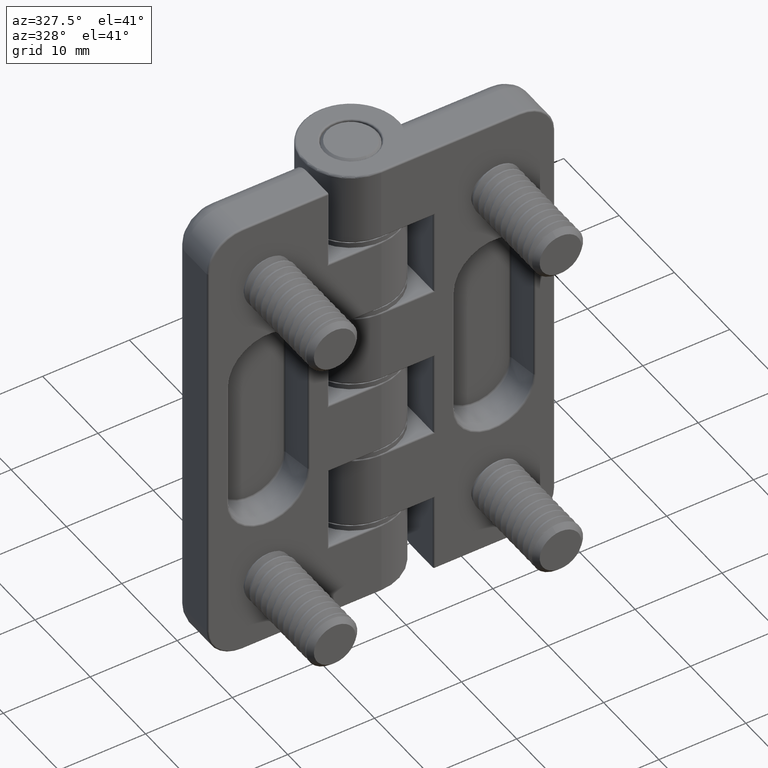
[diagram: clean part render]
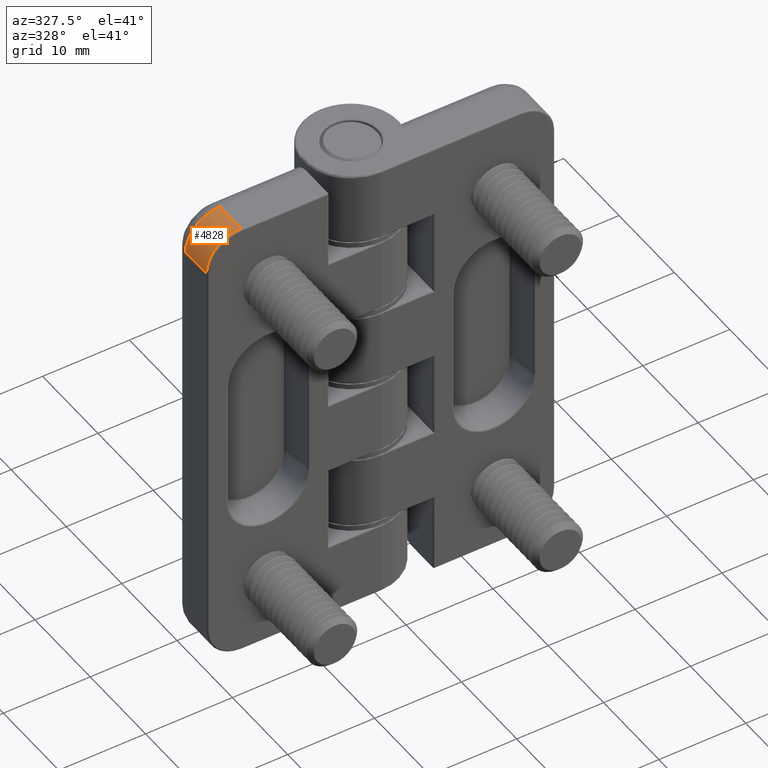
[diagram: same view with one face highlighted and labeled with its STEP entity id]
A machine part, auxiliary view. The second image highlights one B-rep face of the part: STEP entity #4828.
In plain terms, the highlighted cylindrical surface (partial cylindrical patch) has radius 4 mm, axis along (0, 1, 0).
Its self-contained STEP definition (entity closure, byte-faithful):
#314=LINE('',#28351,#522);
#317=LINE('',#28357,#525);
#522=VECTOR('',#6205,3.80000000000001);
#525=VECTOR('',#6210,3.8);
#886=FACE_OUTER_BOUND('',#1193,.T.);
#1193=EDGE_LOOP('',(#4064,#4065,#4066,#4067));
#1482=CIRCLE('',#5241,4.);
#1494=CIRCLE('',#5266,4.);
#2207=VERTEX_POINT('',#28289);
#2208=VERTEX_POINT('',#28293);
#2216=VERTEX_POINT('',#28350);
#2218=VERTEX_POINT('',#28356);
#2847=EDGE_CURVE('',#2207,#2208,#1482,.T.);
#2868=EDGE_CURVE('',#2216,#2208,#314,.T.);
#2871=EDGE_CURVE('',#2207,#2218,#317,.T.);
#2872=EDGE_CURVE('',#2218,#2216,#1494,.F.);
#4064=ORIENTED_EDGE('',*,*,#2847,.F.);
#4065=ORIENTED_EDGE('',*,*,#2871,.T.);
#4066=ORIENTED_EDGE('',*,*,#2872,.T.);
#4067=ORIENTED_EDGE('',*,*,#2868,.T.);
#4644=CYLINDRICAL_SURFACE('',#5265,4.);
#4828=ADVANCED_FACE('',(#886),#4644,.T.);
#5241=AXIS2_PLACEMENT_3D('',#28295,#6151,#6152);
#5265=AXIS2_PLACEMENT_3D('',#28355,#6208,#6209);
#5266=AXIS2_PLACEMENT_3D('',#28358,#6211,#6212);
#6151=DIRECTION('center_axis',(5.55111512312578E-16,-1.,4.21687917729221E-81));
#6152=DIRECTION('ref_axis',(0.707106781186547,3.92523114670943E-16,-0.707106781186548));
#6205=DIRECTION('',(2.96619335758314E-115,-1.,0.));
#6208=DIRECTION('center_axis',(-2.96619335758314E-115,1.,0.));
#6209=DIRECTION('ref_axis',(0.707106781186547,4.96976067915675E-66,-0.707106781186548));
#6210=DIRECTION('',(-2.96619335758314E-115,1.,0.));
#6211=DIRECTION('center_axis',(-6.93889390390723E-17,1.,-2.1084395886461E-81));
#6212=DIRECTION('ref_axis',(0.,0.,-1.));
#28289=CARTESIAN_POINT('',(16.,-5.3,-54.));
#28293=CARTESIAN_POINT('',(20.,-5.30000000000001,-50.));
#28295=CARTESIAN_POINT('Origin',(16.,-5.30000000000001,-50.));
#28350=CARTESIAN_POINT('',(20.,-1.5,-50.));
#28351=CARTESIAN_POINT('',(20.,-3.48262054920434,-50.));
#28355=CARTESIAN_POINT('Origin',(16.,-3.48262054920434,-50.));
#28356=CARTESIAN_POINT('',(16.,-1.5,-54.));
#28357=CARTESIAN_POINT('',(16.,-3.48262054920434,-54.));
#28358=CARTESIAN_POINT('Origin',(16.,-1.5,-50.));